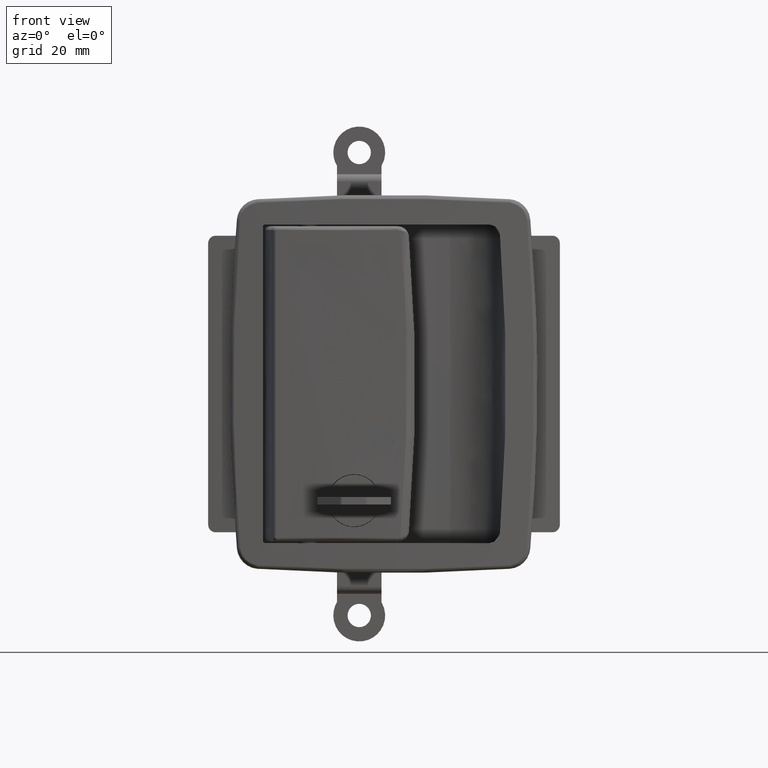
[diagram: clean part render]
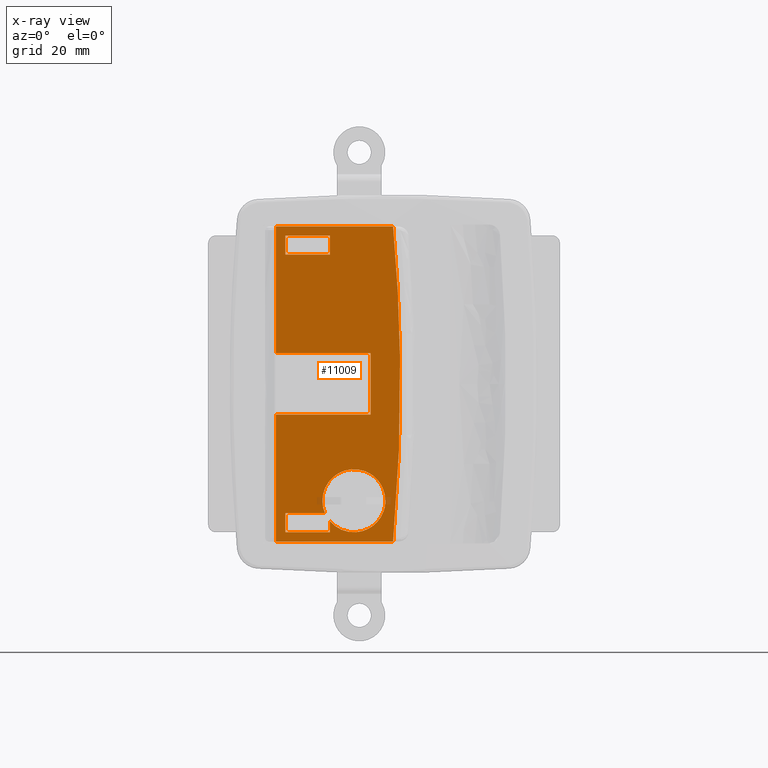
[diagram: x-ray — body ghosted, one internal face saturated and labeled with its STEP entity id]
A machine part, front view, then the same camera in x-ray: the body is ghosted and one INTERNAL B-rep face — a face not visible from any outside direction — is saturated and labeled: STEP entity #11009.
In plain terms, the highlighted face is a freeform B-spline surface patch.
Its self-contained STEP definition (entity closure, byte-faithful):
#7114=CARTESIAN_POINT('',(41.975166524775020,-1.0,-32.149270650266253));
#7115=VERTEX_POINT('',#7114);
#7121=CARTESIAN_POINT('',(27.0,-1.0,-36.977225575051662));
#7122=VERTEX_POINT('',#7121);
#7123=CARTESIAN_POINT('',(27.0,-1.0,-36.977225575051662));
#7124=CARTESIAN_POINT('',(32.095522803417055,-1.0,-43.024246602097556));
#7125=CARTESIAN_POINT('',(38.494244499943882,-1.0,-38.378046370502339));
#7126=CARTESIAN_POINT('',(41.674918707347040,-1.0,-36.068514882816771));
#7127=CARTESIAN_POINT('',(41.975166524775013,-1.000000000000000,-32.149270650266253));
#7135=(BOUNDED_CURVE()B_SPLINE_CURVE(2,(#7123,#7124,#7125,#7126,#7127),.UNSPECIFIED.,.F.,.U.)B_SPLINE_CURVE_WITH_KNOTS((3,2,3),(0.0,0.250000000000000,0.393615344569908),.UNSPECIFIED.)CURVE()GEOMETRIC_REPRESENTATION_ITEM()RATIONAL_B_SPLINE_CURVE((1.0,0.732158123094288,1.0,0.846135186231741,0.869049158435588))REPRESENTATION_ITEM(''));
#7136=EDGE_CURVE('',#7122,#7115,#7135,.T.);
#7176=CARTESIAN_POINT('',(25.709621318574900,-1.0,-34.899999999999999));
#7177=VERTEX_POINT('',#7176);
#7183=CARTESIAN_POINT('',(38.056817959706542,-1.000000000000000,-24.324666552549910));
#7184=VERTEX_POINT('',#7183);
#7185=CARTESIAN_POINT('',(38.056817959706549,-0.999999999999999,-24.324666552549917));
#7186=CARTESIAN_POINT('',(33.903133543059901,-1.0,-21.686798377189120));
#7187=CARTESIAN_POINT('',(29.547079258881549,-1.0,-23.975080225382101));
#7188=CARTESIAN_POINT('',(22.546564165966487,-1.0,-27.652525585349657));
#7189=CARTESIAN_POINT('',(25.709621318574900,-1.0,-34.899999999999999));
#7197=(BOUNDED_CURVE()B_SPLINE_CURVE(2,(#7185,#7186,#7187,#7188,#7189),.UNSPECIFIED.,.F.,.U.)B_SPLINE_CURVE_WITH_KNOTS((3,2,3),(0.576926909570089,0.750000000000000,1.0),.UNSPECIFIED.)CURVE()GEOMETRIC_REPRESENTATION_ITEM()RATIONAL_B_SPLINE_CURVE((0.885886692790023,0.814575114469522,1.0,0.732158123094288,1.0))REPRESENTATION_ITEM(''));
#7198=EDGE_CURVE('',#7184,#7177,#7197,.T.);
#7238=CARTESIAN_POINT('',(41.975166524775020,-1.000000000000000,-32.149270650266246));
#7239=CARTESIAN_POINT('',(42.187565685551839,-1.0,-29.376746963033540));
#7240=CARTESIAN_POINT('',(40.720280274133650,-1.0,-27.014740502160830));
#7241=CARTESIAN_POINT('',(39.695776657633452,-1.0,-25.365515244055107));
#7242=CARTESIAN_POINT('',(38.056817959706549,-0.999999999999999,-24.324666552549917));
#7250=(BOUNDED_CURVE()B_SPLINE_CURVE(2,(#7238,#7239,#7240,#7241,#7242),.UNSPECIFIED.,.F.,.U.)B_SPLINE_CURVE_WITH_KNOTS((3,2,3),(0.393615344569908,0.500000000000000,0.576926909570089),.UNSPECIFIED.)CURVE()GEOMETRIC_REPRESENTATION_ITEM()RATIONAL_B_SPLINE_CURVE((0.869049158435588,0.886022936862547,1.0,0.917583008624766,0.885886692790023))REPRESENTATION_ITEM(''));
#7251=EDGE_CURVE('',#7115,#7184,#7250,.T.);
#8107=CARTESIAN_POINT('',(44.080663997145400,-1.0,-42.500000000000000));
#8108=VERTEX_POINT('',#8107);
#8144=CARTESIAN_POINT('',(44.080663997145400,-1.0,42.500000000000000));
#8145=VERTEX_POINT('',#8144);
#8146=CARTESIAN_POINT('',(44.080663997145400,-1.0,-42.500000000000000));
#8147=CARTESIAN_POINT('',(47.927180982374146,-1.0,1.387779E-013));
#8148=CARTESIAN_POINT('',(44.080663997145443,-1.0,42.500000000000028));
#8156=(BOUNDED_CURVE()B_SPLINE_CURVE(2,(#8146,#8147,#8148),.UNSPECIFIED.,.F.,.U.)CURVE()GEOMETRIC_REPRESENTATION_ITEM()QUASI_UNIFORM_CURVE()RATIONAL_B_SPLINE_CURVE((1.0,0.995929297979100,1.0))REPRESENTATION_ITEM(''));
#8157=EDGE_CURVE('',#8108,#8145,#8156,.T.);
#10410=CARTESIAN_POINT('',(12.419999999999821,-1.0,8.250000000000000));
#10411=VERTEX_POINT('',#10410);
#10417=CARTESIAN_POINT('',(38.0,-1.0,8.250000000000000));
#10418=VERTEX_POINT('',#10417);
#10419=CARTESIAN_POINT('',(38.0,-1.0,8.250000000000000));
#10420=CARTESIAN_POINT('',(12.419999999999821,-1.0,8.250000000000000));
#10421=QUASI_UNIFORM_CURVE('',1,(#10419,#10420),.UNSPECIFIED.,.F.,.U.);
#10422=EDGE_CURVE('',#10418,#10411,#10421,.T.);
#10480=CARTESIAN_POINT('',(38.0,-1.0,-8.250000000000000));
#10481=VERTEX_POINT('',#10480);
#10487=CARTESIAN_POINT('',(12.419999999999821,-1.0,-8.250000000000000));
#10488=VERTEX_POINT('',#10487);
#10489=CARTESIAN_POINT('',(38.0,-1.0,-8.250000000000000));
#10490=CARTESIAN_POINT('',(12.419999999999821,-1.0,-8.250000000000000));
#10491=QUASI_UNIFORM_CURVE('',1,(#10489,#10490),.UNSPECIFIED.,.F.,.U.);
#10492=EDGE_CURVE('',#10481,#10488,#10491,.T.);
#10514=CARTESIAN_POINT('',(38.0,-1.0,-8.250000000000000));
#10515=CARTESIAN_POINT('',(38.0,-1.0,8.250000000000000));
#10516=QUASI_UNIFORM_CURVE('',1,(#10514,#10515),.UNSPECIFIED.,.F.,.U.);
#10517=EDGE_CURVE('',#10481,#10418,#10516,.T.);
#10533=CARTESIAN_POINT('',(14.999999999999821,-1.0,-40.0));
#10534=VERTEX_POINT('',#10533);
#10559=CARTESIAN_POINT('',(27.0,-1.0,-40.0));
#10560=VERTEX_POINT('',#10559);
#10566=CARTESIAN_POINT('',(27.0,-1.0,-40.0));
#10567=CARTESIAN_POINT('',(14.999999999999821,-1.0,-40.0));
#10568=QUASI_UNIFORM_CURVE('',1,(#10566,#10567),.UNSPECIFIED.,.F.,.U.);
#10569=EDGE_CURVE('',#10560,#10534,#10568,.T.);
#10585=CARTESIAN_POINT('',(14.999999999999821,-1.0,-34.899999999999999));
#10586=VERTEX_POINT('',#10585);
#10587=CARTESIAN_POINT('',(25.709621318574900,-1.0,-34.899999999999999));
#10588=CARTESIAN_POINT('',(14.999999999999821,-1.0,-34.899999999999999));
#10589=QUASI_UNIFORM_CURVE('',1,(#10587,#10588),.UNSPECIFIED.,.F.,.U.);
#10590=EDGE_CURVE('',#7177,#10586,#10589,.T.);
#10635=CARTESIAN_POINT('',(27.0,-1.0,-36.977225575051662));
#10636=CARTESIAN_POINT('',(27.0,-1.0,-40.0));
#10637=QUASI_UNIFORM_CURVE('',1,(#10635,#10636),.UNSPECIFIED.,.F.,.U.);
#10638=EDGE_CURVE('',#7122,#10560,#10637,.T.);
#10680=CARTESIAN_POINT('',(14.999999999999821,-1.0,-34.899999999999999));
#10681=CARTESIAN_POINT('',(14.999999999999821,-1.0,-40.0));
#10682=QUASI_UNIFORM_CURVE('',1,(#10680,#10681),.UNSPECIFIED.,.F.,.U.);
#10683=EDGE_CURVE('',#10586,#10534,#10682,.T.);
#10695=CARTESIAN_POINT('',(14.999999999999821,-1.0,40.0));
#10696=VERTEX_POINT('',#10695);
#10704=CARTESIAN_POINT('',(27.0,-1.0,40.0));
#10705=VERTEX_POINT('',#10704);
#10706=CARTESIAN_POINT('',(27.0,-1.0,40.0));
#10707=CARTESIAN_POINT('',(14.999999999999821,-1.0,40.0));
#10708=QUASI_UNIFORM_CURVE('',1,(#10706,#10707),.UNSPECIFIED.,.F.,.U.);
#10709=EDGE_CURVE('',#10705,#10696,#10708,.T.);
#10747=CARTESIAN_POINT('',(14.999999999999821,-1.0,34.899999999999999));
#10748=VERTEX_POINT('',#10747);
#10773=CARTESIAN_POINT('',(27.0,-1.0,34.899999999999999));
#10774=VERTEX_POINT('',#10773);
#10780=CARTESIAN_POINT('',(27.0,-1.0,34.899999999999999));
#10781=CARTESIAN_POINT('',(14.999999999999821,-1.0,34.899999999999999));
#10782=QUASI_UNIFORM_CURVE('',1,(#10780,#10781),.UNSPECIFIED.,.F.,.U.);
#10783=EDGE_CURVE('',#10774,#10748,#10782,.T.);
#10800=CARTESIAN_POINT('',(27.0,-1.0,34.899999999999999));
#10801=CARTESIAN_POINT('',(27.0,-1.0,40.0));
#10802=QUASI_UNIFORM_CURVE('',1,(#10800,#10801),.UNSPECIFIED.,.F.,.U.);
#10803=EDGE_CURVE('',#10774,#10705,#10802,.T.);
#10851=CARTESIAN_POINT('',(14.999999999999821,-1.0,34.899999999999999));
#10852=CARTESIAN_POINT('',(14.999999999999821,-1.0,40.0));
#10853=QUASI_UNIFORM_CURVE('',1,(#10851,#10852),.UNSPECIFIED.,.F.,.U.);
#10854=EDGE_CURVE('',#10748,#10696,#10853,.T.);
#10893=CARTESIAN_POINT('',(12.419999999999821,-1.0,42.500000000000000));
#10894=VERTEX_POINT('',#10893);
#10900=CARTESIAN_POINT('',(12.419999999999821,-1.0,42.500000000000000));
#10901=CARTESIAN_POINT('',(12.419999999999821,-1.0,8.250000000000000));
#10902=QUASI_UNIFORM_CURVE('',1,(#10900,#10901),.UNSPECIFIED.,.F.,.U.);
#10903=EDGE_CURVE('',#10894,#10411,#10902,.T.);
#10956=CARTESIAN_POINT('',(12.419999999999821,-1.0,-42.500000000000000));
#10957=VERTEX_POINT('',#10956);
#10958=CARTESIAN_POINT('',(12.419999999999821,-1.0,-8.250000000000000));
#10959=CARTESIAN_POINT('',(12.419999999999821,-1.0,-42.500000000000000));
#10960=QUASI_UNIFORM_CURVE('',1,(#10958,#10959),.UNSPECIFIED.,.F.,.U.);
#10961=EDGE_CURVE('',#10488,#10957,#10960,.T.);
#10971=CARTESIAN_POINT('',(10.742679065084371,-1.0,46.745749835253513));
#10972=CARTESIAN_POINT('',(47.677321835601212,-1.0,46.745749835253513));
#10973=CARTESIAN_POINT('',(10.742679065084371,-1.0,-46.745752115131182));
#10974=CARTESIAN_POINT('',(47.677321835601212,-1.0,-46.745752115131182));
#10975=B_SPLINE_SURFACE_WITH_KNOTS('',1,1,((#10971,#10973),(#10972,#10974)),.UNSPECIFIED.,.F.,.F.,.U.,(2,2),(2,2),(0.0,36.934642770516838),(0.0,93.491501950384688),.UNSPECIFIED.);
#10976=ORIENTED_EDGE('',*,*,#10492,.F.);
#10977=ORIENTED_EDGE('',*,*,#10517,.T.);
#10978=ORIENTED_EDGE('',*,*,#10422,.T.);
#10979=ORIENTED_EDGE('',*,*,#10903,.F.);
#10980=CARTESIAN_POINT('',(44.080663997145400,-1.0,42.500000000000000));
#10981=CARTESIAN_POINT('',(12.419999999999821,-1.0,42.500000000000000));
#10982=QUASI_UNIFORM_CURVE('',1,(#10980,#10981),.UNSPECIFIED.,.F.,.U.);
#10983=EDGE_CURVE('',#8145,#10894,#10982,.T.);
#10984=ORIENTED_EDGE('',*,*,#10983,.F.);
#10985=ORIENTED_EDGE('',*,*,#8157,.F.);
#10986=CARTESIAN_POINT('',(12.419999999999821,-1.0,-42.500000000000000));
#10987=CARTESIAN_POINT('',(44.080663997145400,-1.0,-42.500000000000000));
#10988=QUASI_UNIFORM_CURVE('',1,(#10986,#10987),.UNSPECIFIED.,.F.,.U.);
#10989=EDGE_CURVE('',#10957,#8108,#10988,.T.);
#10990=ORIENTED_EDGE('',*,*,#10989,.F.);
#10991=ORIENTED_EDGE('',*,*,#10961,.F.);
#10992=EDGE_LOOP('',(#10976,#10977,#10978,#10979,#10984,#10985,#10990,#10991));
#10993=FACE_OUTER_BOUND('',#10992,.T.);
#10994=ORIENTED_EDGE('',*,*,#10783,.F.);
#10995=ORIENTED_EDGE('',*,*,#10803,.T.);
#10996=ORIENTED_EDGE('',*,*,#10709,.T.);
#10997=ORIENTED_EDGE('',*,*,#10854,.F.);
#10998=EDGE_LOOP('',(#10994,#10995,#10996,#10997));
#10999=FACE_BOUND('',#10998,.T.);
#11000=ORIENTED_EDGE('',*,*,#10638,.F.);
#11001=ORIENTED_EDGE('',*,*,#7136,.T.);
#11002=ORIENTED_EDGE('',*,*,#7251,.T.);
#11003=ORIENTED_EDGE('',*,*,#7198,.T.);
#11004=ORIENTED_EDGE('',*,*,#10590,.T.);
#11005=ORIENTED_EDGE('',*,*,#10683,.T.);
#11006=ORIENTED_EDGE('',*,*,#10569,.F.);
#11007=EDGE_LOOP('',(#11000,#11001,#11002,#11003,#11004,#11005,#11006));
#11008=FACE_BOUND('',#11007,.T.);
#11009=ADVANCED_FACE('',(#10993,#10999,#11008),#10975,.T.);